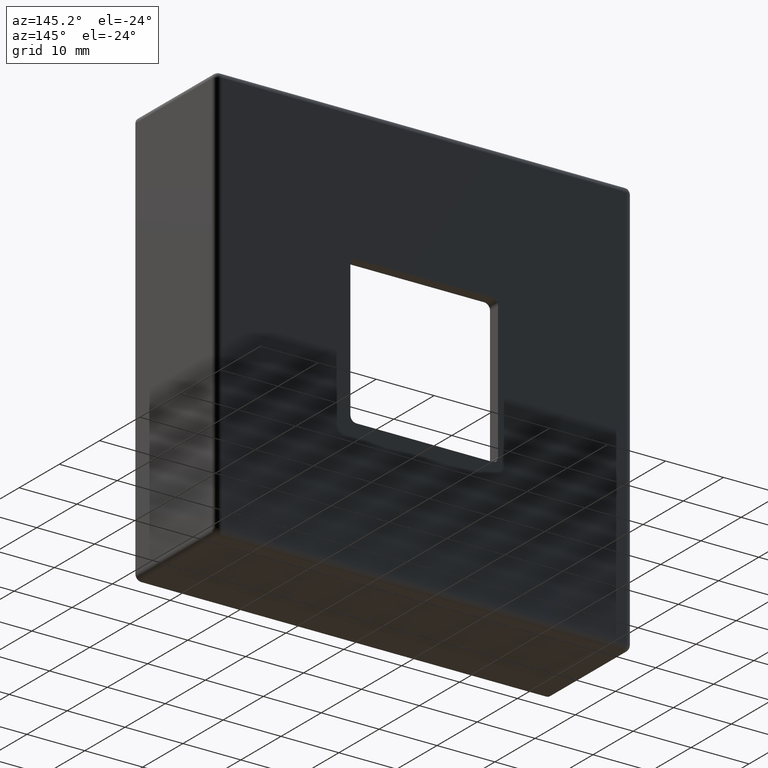
[diagram: clean part render]
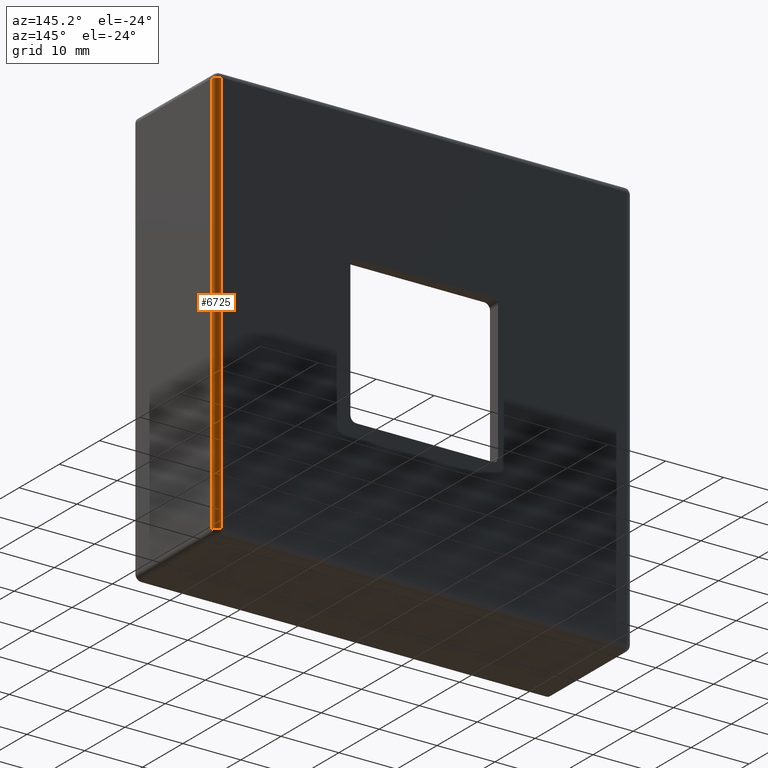
[diagram: same view with one face highlighted and labeled with its STEP entity id]
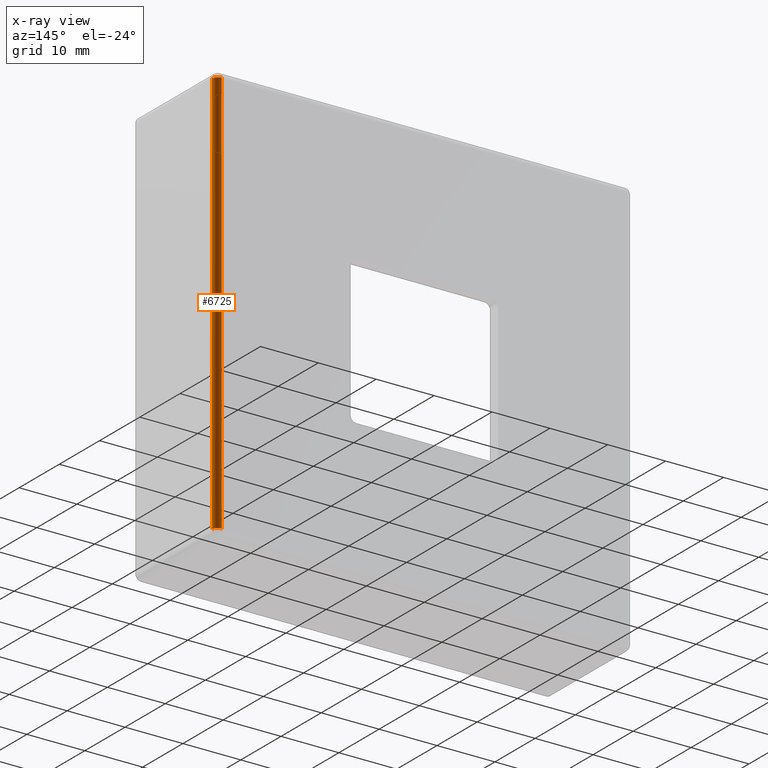
[diagram: x-ray of the same camera — body ghosted, the highlighted face saturated]
A machine part, auxiliary view. The second image highlights one B-rep face of the part: STEP entity #6725.
The next image is the same camera in x-ray: the body ghosted, the highlighted face saturated — about 0% of this face is hidden behind the body in this view.
In plain terms, the highlighted cylindrical surface (edge-blend (fillet) strip) has radius 1 mm, axis along (0, -0, 1).
Its self-contained STEP definition (entity closure, byte-faithful):
#1415 = EDGE_CURVE ( 'NONE', #11658, #1441, #7963, .T. ) ;
#1441 = VERTEX_POINT ( 'NONE', #9316 ) ;
#1595 = DIRECTION ( 'NONE',  ( -0.000000000000000000, -0.000000000000000000, 1.000000000000000000 ) ) ;
#2400 = EDGE_CURVE ( 'NONE', #1441, #3000, #12451, .T. ) ;
#2737 = VECTOR ( 'NONE', #15115, 1000.000000000000000 ) ;
#2788 = CARTESIAN_POINT ( 'NONE',  ( 34.99999999999998579, 19.00000000000000000, -1.011922027653137104E-14 ) ) ;
#2883 = AXIS2_PLACEMENT_3D ( 'NONE', #6921, #1595, #9513 ) ;
#3000 = VERTEX_POINT ( 'NONE', #11205 ) ;
#3081 = CARTESIAN_POINT ( 'NONE',  ( 34.99999999999999289, 19.00000000000000000, 34.99999999999999289 ) ) ;
#3894 = ORIENTED_EDGE ( 'NONE', *, *, #11321, .F. ) ;
#4116 = ORIENTED_EDGE ( 'NONE', *, *, #1415, .F. ) ;
#4168 = ORIENTED_EDGE ( 'NONE', *, *, #2400, .F. ) ;
#4184 = DIRECTION ( 'NONE',  ( 1.000000000000000000, 0.000000000000000000, -2.891205793294681285E-16 ) ) ;
#6627 = EDGE_LOOP ( 'NONE', ( #8846, #3894, #4168, #4116 ) ) ;
#6725 = ADVANCED_FACE ( 'NONE', ( #8100 ), #16754, .T. ) ;
#6894 = DIRECTION ( 'NONE',  ( 2.891205793294678819E-16, -0.000000000000000000, 1.000000000000000000 ) ) ;
#6921 = CARTESIAN_POINT ( 'NONE',  ( 34.99999999999997868, 19.00000000000000000, -35.00000000000000000 ) ) ;
#7175 = CARTESIAN_POINT ( 'NONE',  ( 34.99999999999997868, 20.00000000000000000, -36.00000000000000711 ) ) ;
#7963 = LINE ( 'NONE', #9649, #11247 ) ;
#8088 = EDGE_CURVE ( 'NONE', #11658, #16171, #13428, .T. ) ;
#8100 = FACE_OUTER_BOUND ( 'NONE', #6627, .T. ) ;
#8573 = CARTESIAN_POINT ( 'NONE',  ( 35.99999999999997158, 19.00000000000000000, -35.00000000000000000 ) ) ;
#8846 = ORIENTED_EDGE ( 'NONE', *, *, #8088, .T. ) ;
#8918 = LINE ( 'NONE', #7175, #2737 ) ;
#9291 = CARTESIAN_POINT ( 'NONE',  ( 34.99999999999997868, 20.00000000000000000, -35.00000000000000000 ) ) ;
#9316 = CARTESIAN_POINT ( 'NONE',  ( 35.99999999999999289, 19.00000000000000000, 34.99999999999999289 ) ) ;
#9513 = DIRECTION ( 'NONE',  ( -1.000000000000000000, 0.000000000000000000, 0.000000000000000000 ) ) ;
#9649 = CARTESIAN_POINT ( 'NONE',  ( 35.99999999999999289, 19.00000000000000000, 35.99999999999999289 ) ) ;
#9689 = DIRECTION ( 'NONE',  ( 1.000000000000000000, 0.000000000000000000, 0.000000000000000000 ) ) ;
#10030 = AXIS2_PLACEMENT_3D ( 'NONE', #2788, #10836, #4184 ) ;
#10836 = DIRECTION ( 'NONE',  ( 2.891205793294678819E-16, -0.000000000000000000, 1.000000000000000000 ) ) ;
#11205 = CARTESIAN_POINT ( 'NONE',  ( 34.99999999999999289, 20.00000000000000000, 34.99999999999999289 ) ) ;
#11247 = VECTOR ( 'NONE', #6894, 1000.000000000000000 ) ;
#11321 = EDGE_CURVE ( 'NONE', #3000, #16171, #8918, .T. ) ;
#11658 = VERTEX_POINT ( 'NONE', #8573 ) ;
#12451 = CIRCLE ( 'NONE', #15300, 1.000000000000000888 ) ;
#13428 = CIRCLE ( 'NONE', #2883, 1.000000000000000888 ) ;
#15040 = DIRECTION ( 'NONE',  ( 0.000000000000000000, 0.000000000000000000, 1.000000000000000000 ) ) ;
#15115 = DIRECTION ( 'NONE',  ( -2.891205793294678819E-16, 0.000000000000000000, -1.000000000000000000 ) ) ;
#15300 = AXIS2_PLACEMENT_3D ( 'NONE', #3081, #15040, #9689 ) ;
#16171 = VERTEX_POINT ( 'NONE', #9291 ) ;
#16754 = CYLINDRICAL_SURFACE ( 'NONE', #10030, 1.000000000000000888 ) ;